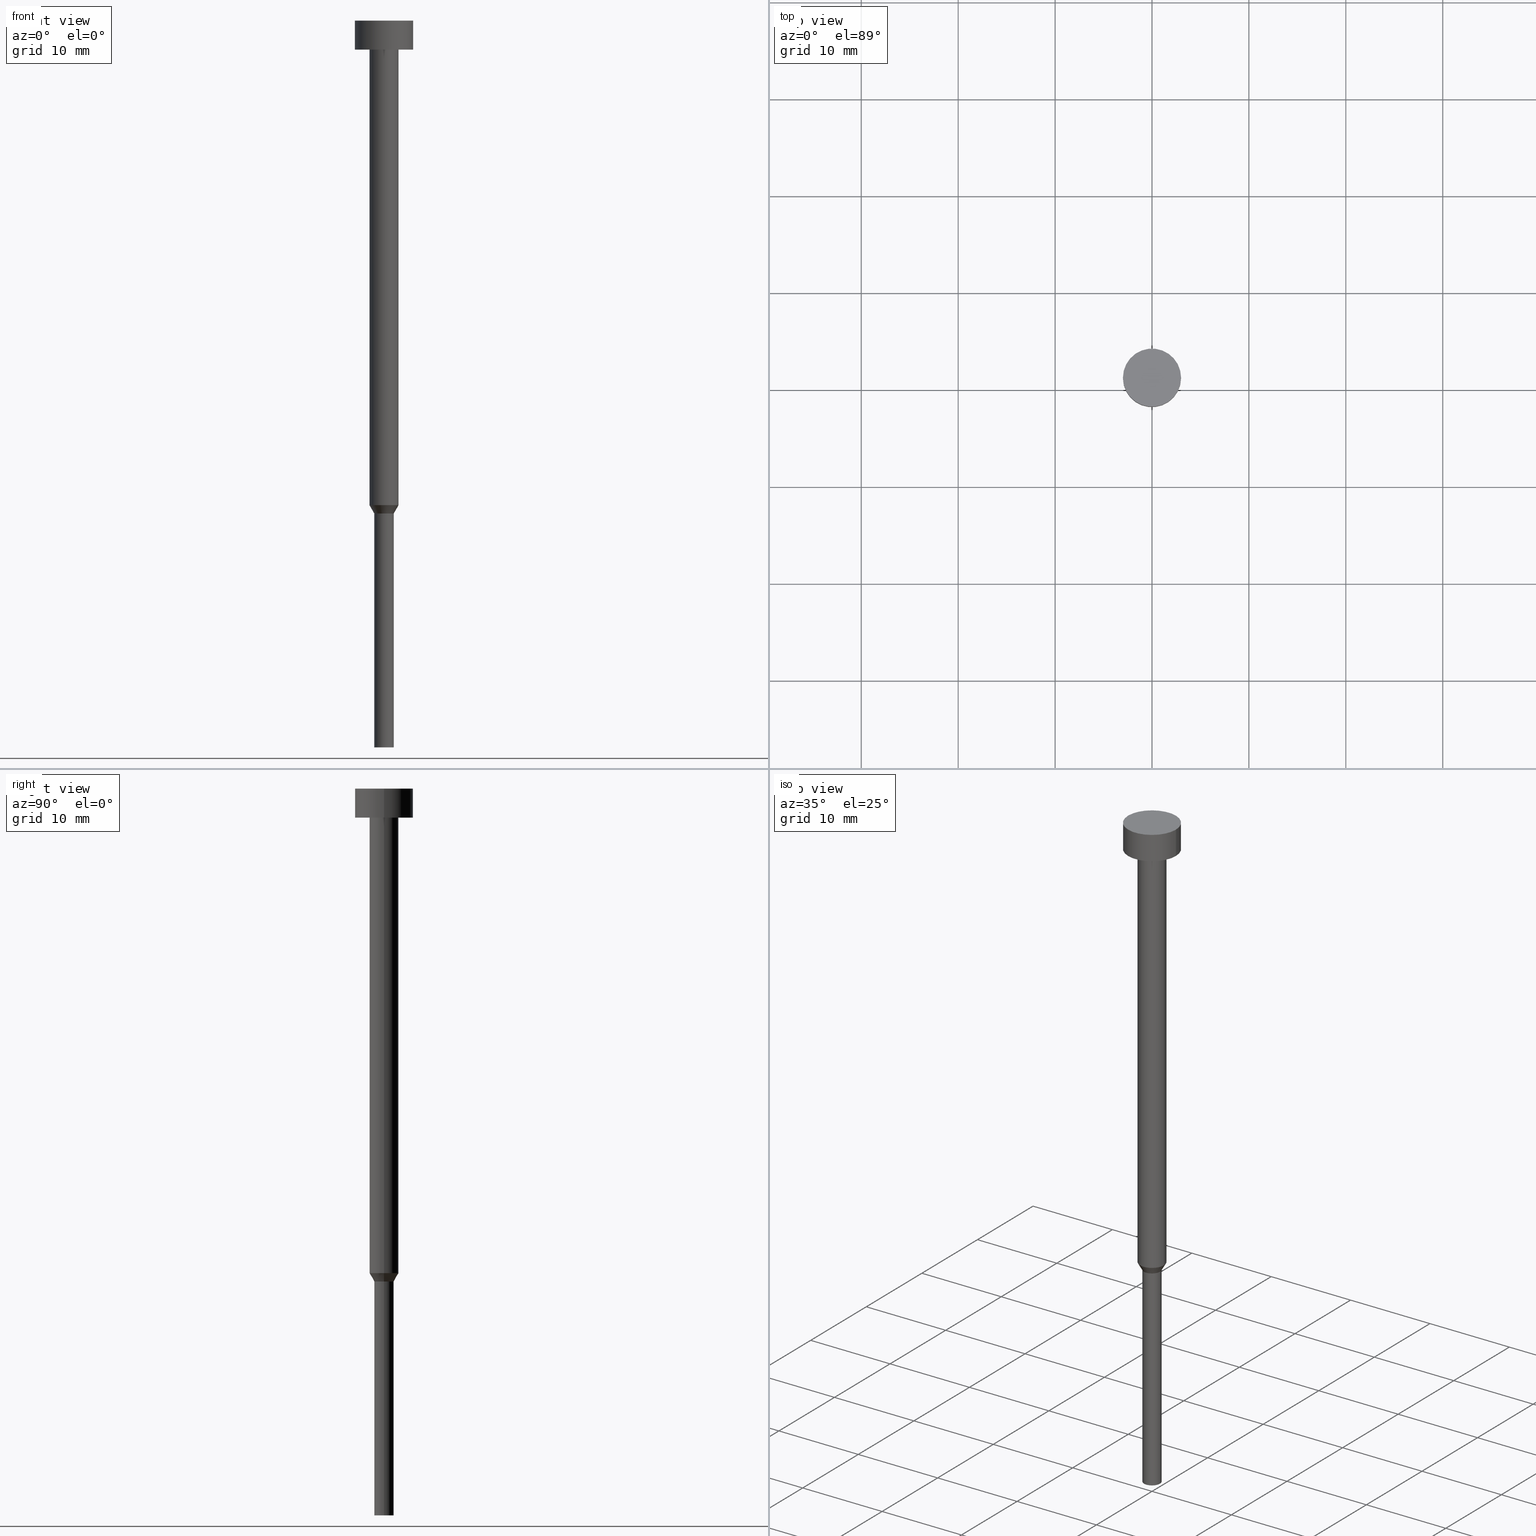
[diagram: canonical four-view strip — front | top / right | iso, engineering-drawing reading convention]
A machine part, canonical four-view strip (front | top / right | iso — engineering-drawing reading convention). The complete STEP part file that produces these views, byte-faithful:
ISO-10303-21;
HEADER;
FILE_DESCRIPTION (( 'STEP AP203' ),
    '1' );
FILE_NAME ('8285.STEP',
    '2023-02-13T08:59:01',
    ( '' ),
    ( '' ),
    'SwSTEP 2.0',
    'SolidWorks 2019',
    '' );
FILE_SCHEMA (( 'CONFIG_CONTROL_DESIGN' ));
ENDSEC;

DATA;
#1 = CC_DESIGN_PERSON_AND_ORGANIZATION_ASSIGNMENT ( #59, #195, ( #108 ) ) ;
#2 = PRODUCT_DEFINITION_SHAPE ( 'NONE', 'NONE',  #20 ) ;
#3 = CYLINDRICAL_SURFACE ( 'NONE', #92, 3.000000000000000000 ) ;
#4 = ORIENTED_EDGE ( 'NONE', *, *, #247, .F. ) ;
#5 = CARTESIAN_POINT ( 'NONE',  ( 0.000000000000000000, 0.000000000000000000, -75.00000000000000000 ) ) ;
#6 = AXIS2_PLACEMENT_3D ( 'NONE', #249, #218, #251 ) ;
#7 = CIRCLE ( 'NONE', #355, 1.500000000000000000 ) ;
#8 = CARTESIAN_POINT ( 'NONE',  ( 0.000000000000000000, 0.000000000000000000, 0.000000000000000000 ) ) ;
#9 = PERSON ( 'NEUR�EN�', 'NEUR�EN�', 'NEUR�EN�', ('NEUR�EN�'), ('NEUR�EN�'), ('NEUR�EN�') ) ;
#10 = CARTESIAN_POINT ( 'NONE',  ( 0.000000000000000000, 0.000000000000000000, 0.000000000000000000 ) ) ;
#11 = ORIENTED_EDGE ( 'NONE', *, *, #190, .F. ) ;
#12 = DIRECTION ( 'NONE',  ( 1.000000000000000000, 0.000000000000000000, 0.000000000000000000 ) ) ;
#13 = PERSON_AND_ORGANIZATION ( #9, #307 ) ;
#14 = LOCAL_TIME ( 9, 59, 1.000000000000000000, #266 ) ;
#15 = EDGE_CURVE ( 'NONE', #181, #32, #345, .T. ) ;
#16 = CYLINDRICAL_SURFACE ( 'NONE', #341, 1.500000000000000000 ) ;
#17 = CARTESIAN_POINT ( 'NONE',  ( 0.000000000000000000, 0.000000000000000000, 0.000000000000000000 ) ) ;
#18 = DIRECTION ( 'NONE',  ( -0.000000000000000000, -0.000000000000000000, 1.000000000000000000 ) ) ;
#19 = DIRECTION ( 'NONE',  ( 1.000000000000000000, 0.000000000000000000, 0.000000000000000000 ) ) ;
#20 = PRODUCT_DEFINITION ( 'NEZN�M�', '', #139, #290 ) ;
#21 = DATE_TIME_ROLE ( 'classification_date' ) ;
#22 = VECTOR ( 'NONE', #146, 1000.000000000000000 ) ;
#23 = CALENDAR_DATE ( 2023, 13, 2 ) ;
#24 = ORIENTED_EDGE ( 'NONE', *, *, #190, .T. ) ;
#25 = EDGE_CURVE ( 'NONE', #181, #262, #130, .T. ) ;
#26 = DIRECTION ( 'NONE',  ( -0.000000000000000000, -0.000000000000000000, 1.000000000000000000 ) ) ;
#27 = DIRECTION ( 'NONE',  ( 1.000000000000000000, 0.000000000000000000, 0.000000000000000000 ) ) ;
#28 = ORIENTED_EDGE ( 'NONE', *, *, #198, .T. ) ;
#29 = APPROVAL ( #308, 'NEUR�EN�' ) ;
#30 = CC_DESIGN_APPROVAL ( #54, ( #139 ) ) ;
#31 = DIRECTION ( 'NONE',  ( -1.000000000000000000, 0.000000000000000000, -0.000000000000000000 ) ) ;
#32 = VERTEX_POINT ( 'NONE', #97 ) ;
#33 = CARTESIAN_POINT ( 'NONE',  ( 0.000000000000000000, 0.000000000000000000, -3.000000000000000444 ) ) ;
#34 = CIRCLE ( 'NONE', #238, 1.500000000000000000 ) ;
#35 = COORDINATED_UNIVERSAL_TIME_OFFSET ( 1, 0, .AHEAD. ) ;
#36 = CARTESIAN_POINT ( 'NONE',  ( 3.000000000000000000, 0.000000000000000000, -3.673940397442059868E-16 ) ) ;
#37 = DIRECTION ( 'NONE',  ( 1.000000000000000000, 0.000000000000000000, 0.000000000000000000 ) ) ;
#38 = DIRECTION ( 'NONE',  ( 1.000000000000000000, 0.000000000000000000, 0.000000000000000000 ) ) ;
#39 = DATE_AND_TIME ( #177, #299 ) ;
#40 = DIRECTION ( 'NONE',  ( -0.000000000000000000, -0.000000000000000000, 1.000000000000000000 ) ) ;
#41 = LINE ( 'NONE', #315, #167 ) ;
#42 =( NAMED_UNIT ( * ) SI_UNIT ( $, .STERADIAN. ) SOLID_ANGLE_UNIT ( ) );
#43 = EDGE_CURVE ( 'NONE', #98, #32, #245, .T. ) ;
#44 = VECTOR ( 'NONE', #284, 1000.000000000000000 ) ;
#45 = CARTESIAN_POINT ( 'NONE',  ( 0.000000000000000000, 0.000000000000000000, -1.836970198721029934E-16 ) ) ;
#46 = EDGE_CURVE ( 'NONE', #262, #291, #75, .T. ) ;
#47 = CLOSED_SHELL ( 'NONE', ( #193, #84, #334, #232, #344, #112, #282, #216, #141, #94, #76 ) ) ;
#48 = FACE_OUTER_BOUND ( 'NONE', #354, .T. ) ;
#49 = CC_DESIGN_APPROVAL ( #137, ( #348 ) ) ;
#50 = EDGE_LOOP ( 'NONE', ( #89, #147, #110, #4 ) ) ;
#51 = LOCAL_TIME ( 9, 59, 1.000000000000000000, #91 ) ;
#52 = CIRCLE ( 'NONE', #271, 3.000000000000000000 ) ;
#53 = CARTESIAN_POINT ( 'NONE',  ( 0.000000000000000000, 0.000000000000000000, 0.000000000000000000 ) ) ;
#54 = APPROVAL ( #292, 'NEUR�EN�' ) ;
#55 = AXIS2_PLACEMENT_3D ( 'NONE', #144, #223, #207 ) ;
#56 = CARTESIAN_POINT ( 'NONE',  ( 0.000000000000000000, -3.000000000000000000, -3.000000000000000444 ) ) ;
#57 = EDGE_LOOP ( 'NONE', ( #104, #133 ) ) ;
#58 = LINE ( 'NONE', #142, #86 ) ;
#59 = PERSON_AND_ORGANIZATION ( #9, #307 ) ;
#60 = DIRECTION ( 'NONE',  ( 1.000000000000000000, 0.000000000000000000, 0.000000000000000000 ) ) ;
#61 = CC_DESIGN_PERSON_AND_ORGANIZATION_ASSIGNMENT ( #333, #272, ( #20 ) ) ;
#62 = DIRECTION ( 'NONE',  ( 1.000000000000000000, 0.000000000000000000, 0.000000000000000000 ) ) ;
#63 = APPROVAL_DATE_TIME ( #83, #29 ) ;
#64 = AXIS2_PLACEMENT_3D ( 'NONE', #191, #26, #303 ) ;
#65 = EDGE_LOOP ( 'NONE', ( #275, #173 ) ) ;
#66 = DIRECTION ( 'NONE',  ( 1.000000000000000000, 0.000000000000000000, 0.000000000000000000 ) ) ;
#67 = PRODUCT_RELATED_PRODUCT_CATEGORY ( 'detail', '', ( #108 ) ) ;
#68 = CARTESIAN_POINT ( 'NONE',  ( 0.000000000000000000, 0.000000000000000000, -3.673940397442059868E-16 ) ) ;
#69 = EDGE_CURVE ( 'NONE', #255, #310, #132, .T. ) ;
#70 = EDGE_LOOP ( 'NONE', ( #213, #342, #107, #294 ) ) ;
#71 = EDGE_CURVE ( 'NONE', #32, #291, #327, .T. ) ;
#72 = APPROVAL_PERSON_ORGANIZATION ( #316, #29, #283 ) ;
#73 = AXIS2_PLACEMENT_3D ( 'NONE', #235, #178, #269 ) ;
#74 = ORIENTED_EDGE ( 'NONE', *, *, #46, .F. ) ;
#75 = CIRCLE ( 'NONE', #111, 1.500000000000000000 ) ;
#76 = ADVANCED_FACE ( 'NONE', ( #166 ), #301, .T. ) ;
#77 = CIRCLE ( 'NONE', #300, 1.000000000000000000 ) ;
#78 = VERTEX_POINT ( 'NONE', #136 ) ;
#79 = CYLINDRICAL_SURFACE ( 'NONE', #175, 1.000000000000000000 ) ;
#80 = PERSON_AND_ORGANIZATION_ROLE ( 'creator' ) ;
#81 = FACE_OUTER_BOUND ( 'NONE', #70, .T. ) ;
#82 = EDGE_LOOP ( 'NONE', ( #135, #228, #150, #253 ) ) ;
#83 = DATE_AND_TIME ( #152, #14 ) ;
#84 = ADVANCED_FACE ( 'NONE', ( #48 ), #164, .T. ) ;
#85 = CARTESIAN_POINT ( 'NONE',  ( -3.000000000000000000, 3.673940397442059868E-16, 0.000000000000000000 ) ) ;
#86 = VECTOR ( 'NONE', #225, 1000.000000000000000 ) ;
#87 = FACE_OUTER_BOUND ( 'NONE', #324, .T. ) ;
#88 = PERSON_AND_ORGANIZATION ( #9, #307 ) ;
#89 = ORIENTED_EDGE ( 'NONE', *, *, #69, .T. ) ;
#90 = AXIS2_PLACEMENT_3D ( 'NONE', #5, #280, #309 ) ;
#91 = COORDINATED_UNIVERSAL_TIME_OFFSET ( 1, 0, .AHEAD. ) ;
#92 = AXIS2_PLACEMENT_3D ( 'NONE', #10, #287, #37 ) ;
#93 = CARTESIAN_POINT ( 'NONE',  ( -3.000000000000000000, 3.673940397442059868E-16, -3.000000000000000444 ) ) ;
#94 = ADVANCED_FACE ( 'NONE', ( #199 ), #3, .T. ) ;
#95 = AXIS2_PLACEMENT_3D ( 'NONE', #96, #129, #182 ) ;
#96 = CARTESIAN_POINT ( 'NONE',  ( 0.000000000000000000, 0.000000000000000000, -50.86602540378444104 ) ) ;
#97 = CARTESIAN_POINT ( 'NONE',  ( -1.000000000000000000, 1.224646799147353207E-16, -50.86602540378444104 ) ) ;
#98 = VERTEX_POINT ( 'NONE', #263 ) ;
#99 = APPROVAL_ROLE ( '' ) ;
#100 = DIRECTION ( 'NONE',  ( -0.000000000000000000, -0.000000000000000000, 1.000000000000000000 ) ) ;
#101 = EDGE_CURVE ( 'NONE', #291, #262, #34, .T. ) ;
#102 = EDGE_LOOP ( 'NONE', ( #28, #243, #302, #200 ) ) ;
#103 = APPLICATION_CONTEXT ( 'configuration controlled 3d designs of mechanical parts and assemblies' ) ;
#104 = ORIENTED_EDGE ( 'NONE', *, *, #198, .F. ) ;
#105 = DIRECTION ( 'NONE',  ( -0.5000000000000012212, 6.123233995736782060E-17, 0.8660254037844380415 ) ) ;
#106 = EDGE_CURVE ( 'NONE', #98, #352, #163, .T. ) ;
#107 = ORIENTED_EDGE ( 'NONE', *, *, #318, .T. ) ;
#108 = PRODUCT ( '8285', '8285', '', ( #224 ) ) ;
#109 = LINE ( 'NONE', #169, #44 ) ;
#110 = ORIENTED_EDGE ( 'NONE', *, *, #328, .F. ) ;
#111 = AXIS2_PLACEMENT_3D ( 'NONE', #270, #18, #248 ) ;
#112 = ADVANCED_FACE ( 'NONE', ( #81 ), #79, .T. ) ;
#113 = DIRECTION ( 'NONE',  ( -0.000000000000000000, -0.000000000000000000, 1.000000000000000000 ) ) ;
#114 = CARTESIAN_POINT ( 'NONE',  ( -3.000000000000000000, 3.673940397442059868E-16, -3.673940397442059868E-16 ) ) ;
#115 = DIRECTION ( 'NONE',  ( -0.000000000000000000, -0.000000000000000000, 1.000000000000000000 ) ) ;
#116 = ORIENTED_EDGE ( 'NONE', *, *, #101, .F. ) ;
#117 = EDGE_CURVE ( 'NONE', #262, #78, #109, .T. ) ;
#118 = CARTESIAN_POINT ( 'NONE',  ( 0.000000000000000000, 0.000000000000000000, -3.000000000000000444 ) ) ;
#119 = APPROVAL_ROLE ( '' ) ;
#120 = EDGE_LOOP ( 'NONE', ( #24, #221 ) ) ;
#121 = CARTESIAN_POINT ( 'NONE',  ( 1.500000000000000000, 0.000000000000000000, -50.00000000000000000 ) ) ;
#122 = DATE_AND_TIME ( #204, #279 ) ;
#123 = AXIS2_PLACEMENT_3D ( 'NONE', #68, #240, #12 ) ;
#124 = PLANE ( 'NONE',  #161 ) ;
#125 = DIRECTION ( 'NONE',  ( 1.000000000000000000, 0.000000000000000000, 0.000000000000000000 ) ) ;
#126 = CC_DESIGN_DATE_AND_TIME_ASSIGNMENT ( #39, #311, ( #20 ) ) ;
#127 =( LENGTH_UNIT ( ) NAMED_UNIT ( * ) SI_UNIT ( .MILLI., .METRE. ) );
#128 = COORDINATED_UNIVERSAL_TIME_OFFSET ( 1, 0, .AHEAD. ) ;
#129 = DIRECTION ( 'NONE',  ( -0.000000000000000000, -0.000000000000000000, 1.000000000000000000 ) ) ;
#130 = LINE ( 'NONE', #241, #145 ) ;
#131 = CALENDAR_DATE ( 2023, 13, 2 ) ;
#132 = CIRCLE ( 'NONE', #64, 3.000000000000000000 ) ;
#133 = ORIENTED_EDGE ( 'NONE', *, *, #106, .F. ) ;
#134 = AXIS2_PLACEMENT_3D ( 'NONE', #56, #335, #31 ) ;
#135 = ORIENTED_EDGE ( 'NONE', *, *, #160, .F. ) ;
#136 = CARTESIAN_POINT ( 'NONE',  ( 1.500000000000000000, 0.000000000000000000, -3.000000000000000444 ) ) ;
#137 = APPROVAL ( #162, 'NEUR�EN�' ) ;
#138 = ORIENTED_EDGE ( 'NONE', *, *, #71, .T. ) ;
#139 = PRODUCT_DEFINITION_FORMATION_WITH_SPECIFIED_SOURCE ( 'LIBOVOLN�', '', #108, .NOT_KNOWN. ) ;
#140 = AXIS2_PLACEMENT_3D ( 'NONE', #8, #115, #332 ) ;
#141 = ADVANCED_FACE ( 'NONE', ( #312, #220 ), #329, .T. ) ;
#142 = CARTESIAN_POINT ( 'NONE',  ( -1.500000000000000000, 1.836970198721029934E-16, 0.000000000000000000 ) ) ;
#143 = APPLICATION_CONTEXT ( 'configuration controlled 3d designs of mechanical parts and assemblies' ) ;
#144 = CARTESIAN_POINT ( 'NONE',  ( 0.000000000000000000, 0.000000000000000000, -50.86602540378444104 ) ) ;
#145 = VECTOR ( 'NONE', #347, 999.9999999999998863 ) ;
#146 = DIRECTION ( 'NONE',  ( -0.000000000000000000, -0.000000000000000000, 1.000000000000000000 ) ) ;
#147 = ORIENTED_EDGE ( 'NONE', *, *, #160, .T. ) ;
#148 = DIRECTION ( 'NONE',  ( 1.000000000000000000, 0.000000000000000000, 0.000000000000000000 ) ) ;
#149 = CIRCLE ( 'NONE', #288, 1.500000000000000000 ) ;
#150 = ORIENTED_EDGE ( 'NONE', *, *, #247, .T. ) ;
#151 = DIRECTION ( 'NONE',  ( -0.000000000000000000, -0.000000000000000000, 1.000000000000000000 ) ) ;
#152 = CALENDAR_DATE ( 2023, 13, 2 ) ;
#153 = CARTESIAN_POINT ( 'NONE',  ( 3.000000000000000000, 0.000000000000000000, 0.000000000000000000 ) ) ;
#154 = CC_DESIGN_SECURITY_CLASSIFICATION ( #348, ( #139 ) ) ;
#155 = SECURITY_CLASSIFICATION_LEVEL ( 'unclassified' ) ;
#156 = EDGE_CURVE ( 'NONE', #310, #255, #211, .T. ) ;
#157 = FACE_OUTER_BOUND ( 'NONE', #172, .T. ) ;
#158 = DIRECTION ( 'NONE',  ( 0.000000000000000000, 0.000000000000000000, -1.000000000000000000 ) ) ;
#159 = ADVANCED_BREP_SHAPE_REPRESENTATION ( '8285', ( #337, #323 ), #187 ) ;
#160 = EDGE_CURVE ( 'NONE', #310, #168, #171, .T. ) ;
#161 = AXIS2_PLACEMENT_3D ( 'NONE', #319, #158, #298 ) ;
#162 = APPROVAL_STATUS ( 'not_yet_approved' ) ;
#163 = CIRCLE ( 'NONE', #90, 1.000000000000000000 ) ;
#164 = CYLINDRICAL_SURFACE ( 'NONE', #6, 1.500000000000000000 ) ;
#165 = CARTESIAN_POINT ( 'NONE',  ( -1.500000000000000000, 1.836970198721029934E-16, -50.00000000000000000 ) ) ;
#166 = FACE_OUTER_BOUND ( 'NONE', #336, .T. ) ;
#167 = VECTOR ( 'NONE', #350, 1000.000000000000000 ) ;
#168 = VERTEX_POINT ( 'NONE', #114 ) ;
#169 = CARTESIAN_POINT ( 'NONE',  ( 1.500000000000000000, 0.000000000000000000, 0.000000000000000000 ) ) ;
#170 = DIRECTION ( 'NONE',  ( 1.000000000000000000, 0.000000000000000000, 0.000000000000000000 ) ) ;
#171 = LINE ( 'NONE', #85, #22 ) ;
#172 = EDGE_LOOP ( 'NONE', ( #281, #231, #264, #306 ) ) ;
#173 = ORIENTED_EDGE ( 'NONE', *, *, #156, .F. ) ;
#174 = APPROVAL_PERSON_ORGANIZATION ( #325, #137, #99 ) ;
#175 = AXIS2_PLACEMENT_3D ( 'NONE', #53, #113, #252 ) ;
#176 = CARTESIAN_POINT ( 'NONE',  ( -1.500000000000000000, 1.836970198721029934E-16, -50.00000000000000000 ) ) ;
#177 = CALENDAR_DATE ( 2023, 13, 2 ) ;
#178 = DIRECTION ( 'NONE',  ( -0.000000000000000000, -0.000000000000000000, 1.000000000000000000 ) ) ;
#179 = EDGE_CURVE ( 'NONE', #291, #304, #58, .T. ) ;
#180 = PERSON_AND_ORGANIZATION_ROLE ( 'design_supplier' ) ;
#181 = VERTEX_POINT ( 'NONE', #203 ) ;
#182 = DIRECTION ( 'NONE',  ( 1.000000000000000000, 0.000000000000000000, 0.000000000000000000 ) ) ;
#183 = PERSON_AND_ORGANIZATION ( #9, #307 ) ;
#184 = CYLINDRICAL_SURFACE ( 'NONE', #219, 1.000000000000000000 ) ;
#185 = FACE_OUTER_BOUND ( 'NONE', #57, .T. ) ;
#186 = UNCERTAINTY_MEASURE_WITH_UNIT (LENGTH_MEASURE( 1.000000000000000082E-05 ), #127, 'distance_accuracy_value', 'NONE');
#187 =( GEOMETRIC_REPRESENTATION_CONTEXT ( 3 ) GLOBAL_UNCERTAINTY_ASSIGNED_CONTEXT ( ( #186 ) ) GLOBAL_UNIT_ASSIGNED_CONTEXT ( ( #127, #295, #42 ) ) REPRESENTATION_CONTEXT ( 'NONE', 'WORKASPACE' ) );
#188 = CONICAL_SURFACE ( 'NONE', #192, 1.500000000000000000, 0.5235987755983002589 ) ;
#189 = VERTEX_POINT ( 'NONE', #36 ) ;
#190 = EDGE_CURVE ( 'NONE', #78, #304, #7, .T. ) ;
#191 = CARTESIAN_POINT ( 'NONE',  ( 0.000000000000000000, 0.000000000000000000, -3.000000000000000444 ) ) ;
#192 = AXIS2_PLACEMENT_3D ( 'NONE', #205, #151, #66 ) ;
#193 = ADVANCED_FACE ( 'NONE', ( #260 ), #230, .T. ) ;
#194 = DIRECTION ( 'NONE',  ( -0.000000000000000000, -0.000000000000000000, 1.000000000000000000 ) ) ;
#195 = PERSON_AND_ORGANIZATION_ROLE ( 'design_owner' ) ;
#196 = DIRECTION ( 'NONE',  ( -0.000000000000000000, -0.000000000000000000, 1.000000000000000000 ) ) ;
#197 = ORIENTED_EDGE ( 'NONE', *, *, #71, .F. ) ;
#198 = EDGE_CURVE ( 'NONE', #352, #98, #77, .T. ) ;
#199 = FACE_OUTER_BOUND ( 'NONE', #82, .T. ) ;
#200 = ORIENTED_EDGE ( 'NONE', *, *, #318, .F. ) ;
#201 = PERSON_AND_ORGANIZATION ( #9, #307 ) ;
#202 = CC_DESIGN_APPROVAL ( #29, ( #20 ) ) ;
#203 = CARTESIAN_POINT ( 'NONE',  ( 1.000000000000000000, 0.000000000000000000, -50.86602540378444104 ) ) ;
#204 = CALENDAR_DATE ( 2023, 13, 2 ) ;
#205 = CARTESIAN_POINT ( 'NONE',  ( 0.000000000000000000, 0.000000000000000000, -50.00000000000000000 ) ) ;
#206 = EDGE_CURVE ( 'NONE', #32, #181, #261, .T. ) ;
#207 = DIRECTION ( 'NONE',  ( 1.000000000000000000, 0.000000000000000000, 0.000000000000000000 ) ) ;
#208 = CARTESIAN_POINT ( 'NONE',  ( -1.000000000000000000, 1.224646799147353207E-16, 0.000000000000000000 ) ) ;
#209 = FACE_OUTER_BOUND ( 'NONE', #102, .T. ) ;
#210 = PERSON_AND_ORGANIZATION_ROLE ( 'classification_officer' ) ;
#211 = CIRCLE ( 'NONE', #278, 3.000000000000000000 ) ;
#212 = DIRECTION ( 'NONE',  ( -0.000000000000000000, -0.000000000000000000, 1.000000000000000000 ) ) ;
#213 = ORIENTED_EDGE ( 'NONE', *, *, #43, .F. ) ;
#214 = APPLICATION_PROTOCOL_DEFINITION ( 'international standard', 'config_control_design', 1994, #103 ) ;
#215 = APPROVAL_PERSON_ORGANIZATION ( #201, #54, #119 ) ;
#216 = ADVANCED_FACE ( 'NONE', ( #157 ), #16, .T. ) ;
#217 = ORIENTED_EDGE ( 'NONE', *, *, #15, .T. ) ;
#218 = DIRECTION ( 'NONE',  ( -0.000000000000000000, -0.000000000000000000, 1.000000000000000000 ) ) ;
#219 = AXIS2_PLACEMENT_3D ( 'NONE', #340, #212, #60 ) ;
#220 = FACE_OUTER_BOUND ( 'NONE', #65, .T. ) ;
#221 = ORIENTED_EDGE ( 'NONE', *, *, #353, .T. ) ;
#222 = VECTOR ( 'NONE', #40, 1000.000000000000000 ) ;
#223 = DIRECTION ( 'NONE',  ( -0.000000000000000000, -0.000000000000000000, 1.000000000000000000 ) ) ;
#224 = MECHANICAL_CONTEXT ( 'NONE', #103, 'mechanical' ) ;
#225 = DIRECTION ( 'NONE',  ( -0.000000000000000000, -0.000000000000000000, 1.000000000000000000 ) ) ;
#226 = CC_DESIGN_DATE_AND_TIME_ASSIGNMENT ( #246, #21, ( #348 ) ) ;
#227 = APPROVAL_DATE_TIME ( #122, #54 ) ;
#228 = ORIENTED_EDGE ( 'NONE', *, *, #156, .T. ) ;
#229 = CARTESIAN_POINT ( 'NONE',  ( 0.000000000000000000, 0.000000000000000000, 0.000000000000000000 ) ) ;
#230 = CYLINDRICAL_SURFACE ( 'NONE', #140, 3.000000000000000000 ) ;
#231 = ORIENTED_EDGE ( 'NONE', *, *, #101, .T. ) ;
#232 = ADVANCED_FACE ( 'NONE', ( #209 ), #184, .T. ) ;
#233 = LOCAL_TIME ( 9, 59, 1.000000000000000000, #128 ) ;
#234 = CARTESIAN_POINT ( 'NONE',  ( 0.000000000000000000, 0.000000000000000000, -3.673940397442059868E-16 ) ) ;
#235 = CARTESIAN_POINT ( 'NONE',  ( 0.000000000000000000, 0.000000000000000000, -50.00000000000000000 ) ) ;
#236 = SHAPE_DEFINITION_REPRESENTATION ( #2, #159 ) ;
#237 = DIRECTION ( 'NONE',  ( -0.000000000000000000, -0.000000000000000000, 1.000000000000000000 ) ) ;
#238 = AXIS2_PLACEMENT_3D ( 'NONE', #330, #194, #254 ) ;
#239 = DATE_AND_TIME ( #23, #51 ) ;
#240 = DIRECTION ( 'NONE',  ( -0.000000000000000000, -0.000000000000000000, 1.000000000000000000 ) ) ;
#241 = CARTESIAN_POINT ( 'NONE',  ( 1.500000000000000000, 0.000000000000000000, -50.00000000000000000 ) ) ;
#242 = CONICAL_SURFACE ( 'NONE', #73, 1.500000000000000000, 0.5235987755983002589 ) ;
#243 = ORIENTED_EDGE ( 'NONE', *, *, #43, .T. ) ;
#244 = LINE ( 'NONE', #153, #314 ) ;
#245 = LINE ( 'NONE', #208, #222 ) ;
#246 = DATE_AND_TIME ( #131, #233 ) ;
#247 = EDGE_CURVE ( 'NONE', #255, #189, #244, .T. ) ;
#248 = DIRECTION ( 'NONE',  ( 1.000000000000000000, 0.000000000000000000, 0.000000000000000000 ) ) ;
#249 = CARTESIAN_POINT ( 'NONE',  ( 0.000000000000000000, 0.000000000000000000, 0.000000000000000000 ) ) ;
#250 = ORIENTED_EDGE ( 'NONE', *, *, #206, .T. ) ;
#251 = DIRECTION ( 'NONE',  ( 1.000000000000000000, 0.000000000000000000, 0.000000000000000000 ) ) ;
#252 = DIRECTION ( 'NONE',  ( 1.000000000000000000, 0.000000000000000000, 0.000000000000000000 ) ) ;
#253 = ORIENTED_EDGE ( 'NONE', *, *, #257, .F. ) ;
#254 = DIRECTION ( 'NONE',  ( 1.000000000000000000, 0.000000000000000000, 0.000000000000000000 ) ) ;
#255 = VERTEX_POINT ( 'NONE', #346 ) ;
#256 = VECTOR ( 'NONE', #105, 999.9999999999998863 ) ;
#257 = EDGE_CURVE ( 'NONE', #168, #189, #305, .T. ) ;
#258 = DIRECTION ( 'NONE',  ( -0.000000000000000000, -0.000000000000000000, 1.000000000000000000 ) ) ;
#259 = ORIENTED_EDGE ( 'NONE', *, *, #117, .F. ) ;
#260 = FACE_OUTER_BOUND ( 'NONE', #50, .T. ) ;
#261 = CIRCLE ( 'NONE', #95, 1.000000000000000000 ) ;
#262 = VERTEX_POINT ( 'NONE', #121 ) ;
#263 = CARTESIAN_POINT ( 'NONE',  ( -1.000000000000000000, 1.224646799147353207E-16, -75.00000000000000000 ) ) ;
#264 = ORIENTED_EDGE ( 'NONE', *, *, #117, .T. ) ;
#265 = CC_DESIGN_PERSON_AND_ORGANIZATION_ASSIGNMENT ( #183, #210, ( #348 ) ) ;
#266 = COORDINATED_UNIVERSAL_TIME_OFFSET ( 1, 0, .AHEAD. ) ;
#267 = ORIENTED_EDGE ( 'NONE', *, *, #25, .F. ) ;
#268 = APPLICATION_PROTOCOL_DEFINITION ( 'international standard', 'config_control_design', 1994, #143 ) ;
#269 = DIRECTION ( 'NONE',  ( 1.000000000000000000, 0.000000000000000000, 0.000000000000000000 ) ) ;
#270 = CARTESIAN_POINT ( 'NONE',  ( 0.000000000000000000, 0.000000000000000000, -50.00000000000000000 ) ) ;
#271 = AXIS2_PLACEMENT_3D ( 'NONE', #234, #317, #62 ) ;
#272 = PERSON_AND_ORGANIZATION_ROLE ( 'creator' ) ;
#273 = CARTESIAN_POINT ( 'NONE',  ( 0.000000000000000000, 0.000000000000000000, -75.00000000000000000 ) ) ;
#274 = CARTESIAN_POINT ( 'NONE',  ( 0.000000000000000000, 0.000000000000000000, -3.000000000000000444 ) ) ;
#275 = ORIENTED_EDGE ( 'NONE', *, *, #69, .F. ) ;
#276 = APPROVAL_DATE_TIME ( #239, #137 ) ;
#277 = AXIS2_PLACEMENT_3D ( 'NONE', #45, #351, #27 ) ;
#278 = AXIS2_PLACEMENT_3D ( 'NONE', #33, #258, #331 ) ;
#279 = LOCAL_TIME ( 9, 59, 1.000000000000000000, #338 ) ;
#280 = DIRECTION ( 'NONE',  ( -0.000000000000000000, -0.000000000000000000, 1.000000000000000000 ) ) ;
#281 = ORIENTED_EDGE ( 'NONE', *, *, #179, .F. ) ;
#282 = ADVANCED_FACE ( 'NONE', ( #87 ), #188, .T. ) ;
#283 = APPROVAL_ROLE ( '' ) ;
#284 = DIRECTION ( 'NONE',  ( -0.000000000000000000, -0.000000000000000000, 1.000000000000000000 ) ) ;
#285 = ORIENTED_EDGE ( 'NONE', *, *, #328, .T. ) ;
#286 = DIRECTION ( 'NONE',  ( 0.000000000000000000, 0.000000000000000000, 1.000000000000000000 ) ) ;
#287 = DIRECTION ( 'NONE',  ( -0.000000000000000000, -0.000000000000000000, 1.000000000000000000 ) ) ;
#288 = AXIS2_PLACEMENT_3D ( 'NONE', #274, #100, #19 ) ;
#289 = CARTESIAN_POINT ( 'NONE',  ( -1.500000000000000000, 1.836970198721029934E-16, -3.000000000000000444 ) ) ;
#290 = DESIGN_CONTEXT ( 'detailed design', #143, 'design' ) ;
#291 = VERTEX_POINT ( 'NONE', #176 ) ;
#292 = APPROVAL_STATUS ( 'not_yet_approved' ) ;
#293 = DIRECTION ( 'NONE',  ( -0.000000000000000000, -0.000000000000000000, 1.000000000000000000 ) ) ;
#294 = ORIENTED_EDGE ( 'NONE', *, *, #206, .F. ) ;
#295 =( NAMED_UNIT ( * ) PLANE_ANGLE_UNIT ( ) SI_UNIT ( $, .RADIAN. ) );
#296 = CC_DESIGN_PERSON_AND_ORGANIZATION_ASSIGNMENT ( #88, #180, ( #139 ) ) ;
#297 = FACE_OUTER_BOUND ( 'NONE', #349, .T. ) ;
#298 = DIRECTION ( 'NONE',  ( -1.000000000000000000, 0.000000000000000000, -0.000000000000000000 ) ) ;
#299 = LOCAL_TIME ( 9, 59, 1.000000000000000000, #35 ) ;
#300 = AXIS2_PLACEMENT_3D ( 'NONE', #273, #321, #125 ) ;
#301 = PLANE ( 'NONE',  #277 ) ;
#302 = ORIENTED_EDGE ( 'NONE', *, *, #15, .F. ) ;
#303 = DIRECTION ( 'NONE',  ( 1.000000000000000000, 0.000000000000000000, 0.000000000000000000 ) ) ;
#304 = VERTEX_POINT ( 'NONE', #289 ) ;
#305 = CIRCLE ( 'NONE', #123, 3.000000000000000000 ) ;
#306 = ORIENTED_EDGE ( 'NONE', *, *, #353, .F. ) ;
#307 = ORGANIZATION ( 'NEUR�EN�', 'NEUR�EN�', '' ) ;
#308 = APPROVAL_STATUS ( 'not_yet_approved' ) ;
#309 = DIRECTION ( 'NONE',  ( 1.000000000000000000, 0.000000000000000000, 0.000000000000000000 ) ) ;
#310 = VERTEX_POINT ( 'NONE', #93 ) ;
#311 = DATE_TIME_ROLE ( 'creation_date' ) ;
#312 = FACE_BOUND ( 'NONE', #120, .T. ) ;
#313 = ORIENTED_EDGE ( 'NONE', *, *, #46, .T. ) ;
#314 = VECTOR ( 'NONE', #237, 1000.000000000000000 ) ;
#315 = CARTESIAN_POINT ( 'NONE',  ( 1.000000000000000000, 0.000000000000000000, 0.000000000000000000 ) ) ;
#316 = PERSON_AND_ORGANIZATION ( #9, #307 ) ;
#317 = DIRECTION ( 'NONE',  ( -0.000000000000000000, -0.000000000000000000, 1.000000000000000000 ) ) ;
#318 = EDGE_CURVE ( 'NONE', #352, #181, #41, .T. ) ;
#319 = CARTESIAN_POINT ( 'NONE',  ( 0.000000000000000000, 0.000000000000000000, -75.00000000000000000 ) ) ;
#320 = ORIENTED_EDGE ( 'NONE', *, *, #25, .T. ) ;
#321 = DIRECTION ( 'NONE',  ( -0.000000000000000000, -0.000000000000000000, 1.000000000000000000 ) ) ;
#322 = CC_DESIGN_PERSON_AND_ORGANIZATION_ASSIGNMENT ( #13, #80, ( #139 ) ) ;
#323 = AXIS2_PLACEMENT_3D ( 'NONE', #229, #286, #170 ) ;
#324 = EDGE_LOOP ( 'NONE', ( #197, #250, #320, #116 ) ) ;
#325 = PERSON_AND_ORGANIZATION ( #9, #307 ) ;
#326 = ORIENTED_EDGE ( 'NONE', *, *, #257, .T. ) ;
#327 = LINE ( 'NONE', #165, #256 ) ;
#328 = EDGE_CURVE ( 'NONE', #189, #168, #52, .T. ) ;
#329 = PLANE ( 'NONE',  #134 ) ;
#330 = CARTESIAN_POINT ( 'NONE',  ( 0.000000000000000000, 0.000000000000000000, -50.00000000000000000 ) ) ;
#331 = DIRECTION ( 'NONE',  ( 1.000000000000000000, 0.000000000000000000, 0.000000000000000000 ) ) ;
#332 = DIRECTION ( 'NONE',  ( 1.000000000000000000, 0.000000000000000000, 0.000000000000000000 ) ) ;
#333 = PERSON_AND_ORGANIZATION ( #9, #307 ) ;
#334 = ADVANCED_FACE ( 'NONE', ( #297 ), #242, .T. ) ;
#335 = DIRECTION ( 'NONE',  ( 0.000000000000000000, 0.000000000000000000, -1.000000000000000000 ) ) ;
#336 = EDGE_LOOP ( 'NONE', ( #285, #326 ) ) ;
#337 = MANIFOLD_SOLID_BREP ( 'Rotovat1', #47 ) ;
#338 = COORDINATED_UNIVERSAL_TIME_OFFSET ( 1, 0, .AHEAD. ) ;
#339 = ORIENTED_EDGE ( 'NONE', *, *, #179, .T. ) ;
#340 = CARTESIAN_POINT ( 'NONE',  ( 0.000000000000000000, 0.000000000000000000, 0.000000000000000000 ) ) ;
#341 = AXIS2_PLACEMENT_3D ( 'NONE', #17, #293, #38 ) ;
#342 = ORIENTED_EDGE ( 'NONE', *, *, #106, .T. ) ;
#343 = CARTESIAN_POINT ( 'NONE',  ( 1.000000000000000000, 0.000000000000000000, -75.00000000000000000 ) ) ;
#344 = ADVANCED_FACE ( 'NONE', ( #185 ), #124, .T. ) ;
#345 = CIRCLE ( 'NONE', #55, 1.000000000000000000 ) ;
#346 = CARTESIAN_POINT ( 'NONE',  ( 3.000000000000000000, 0.000000000000000000, -3.000000000000000444 ) ) ;
#347 = DIRECTION ( 'NONE',  ( 0.5000000000000012212, 0.000000000000000000, 0.8660254037844380415 ) ) ;
#348 = SECURITY_CLASSIFICATION ( '', '', #155 ) ;
#349 = EDGE_LOOP ( 'NONE', ( #217, #138, #74, #267 ) ) ;
#350 = DIRECTION ( 'NONE',  ( -0.000000000000000000, -0.000000000000000000, 1.000000000000000000 ) ) ;
#351 = DIRECTION ( 'NONE',  ( 0.000000000000000000, -0.000000000000000000, 1.000000000000000000 ) ) ;
#352 = VERTEX_POINT ( 'NONE', #343 ) ;
#353 = EDGE_CURVE ( 'NONE', #304, #78, #149, .T. ) ;
#354 = EDGE_LOOP ( 'NONE', ( #313, #339, #11, #259 ) ) ;
#355 = AXIS2_PLACEMENT_3D ( 'NONE', #118, #196, #148 ) ;
ENDSEC;
END-ISO-10303-21;
